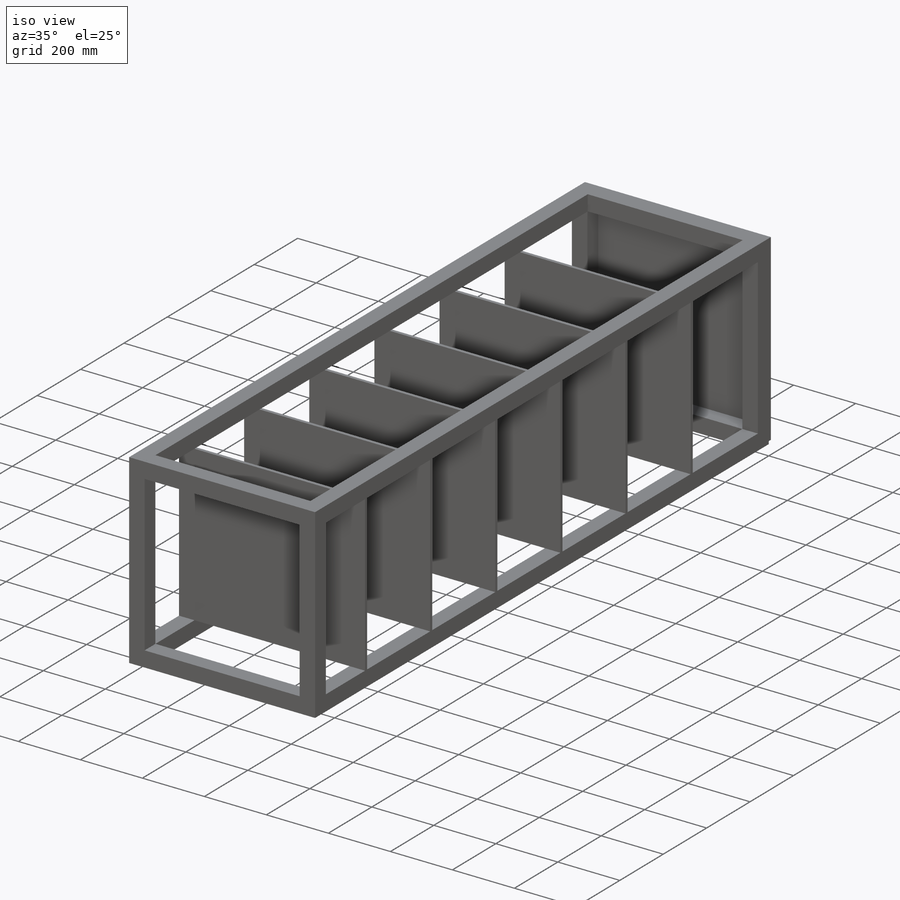
[diagram: iso view]
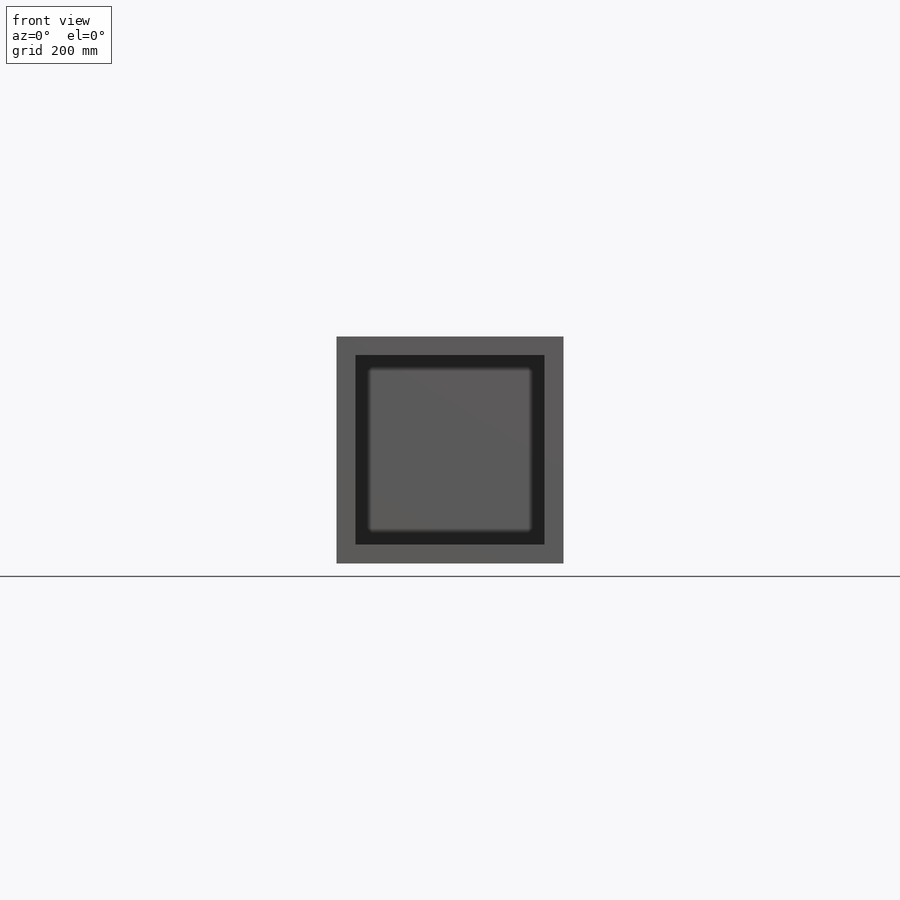
[diagram: front view]
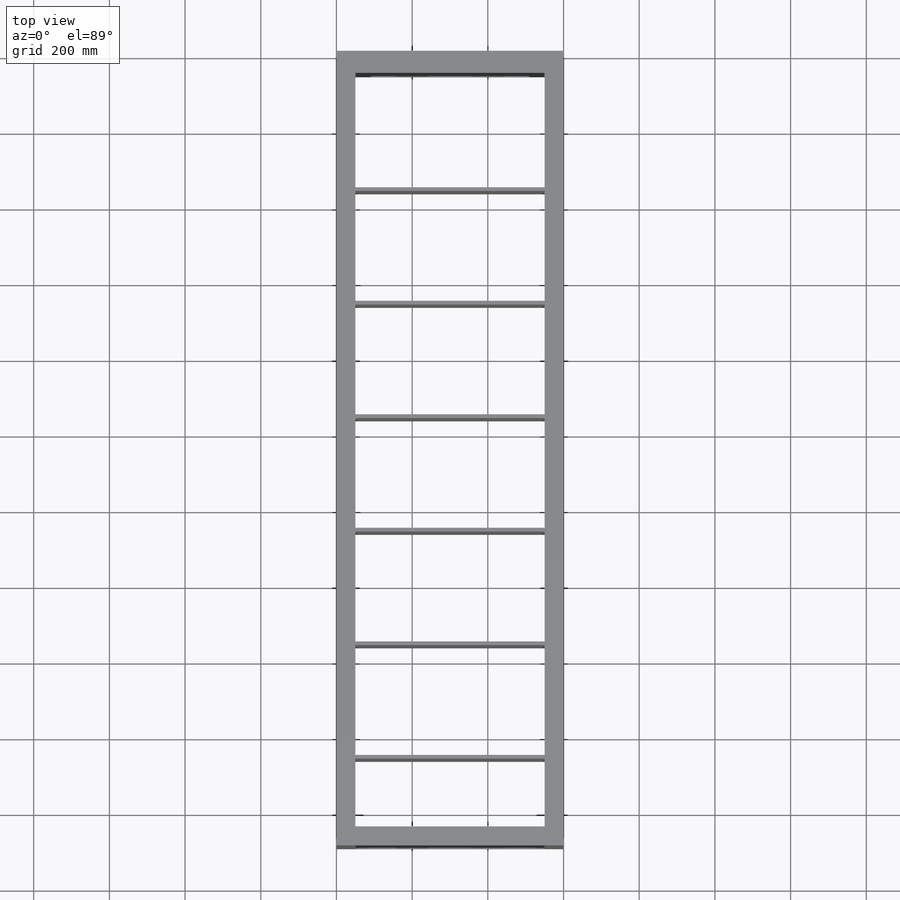
[diagram: top view]
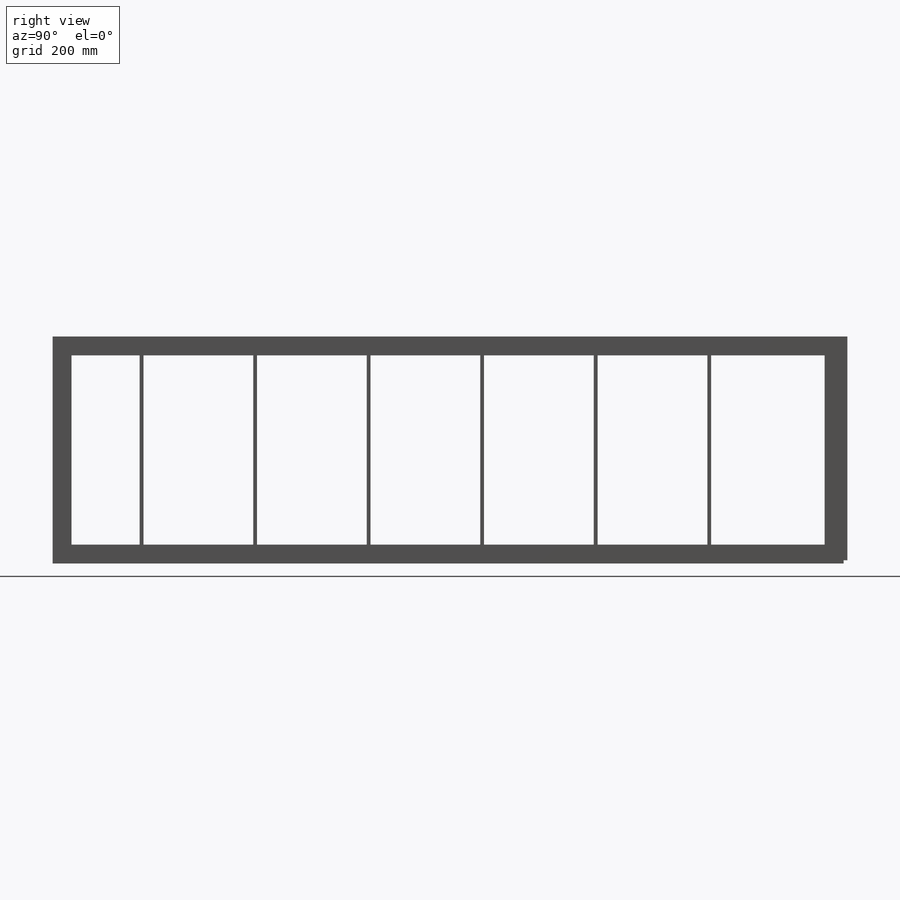
[diagram: right view]
SOLIDWORKS PART (.sldprt)
format: sldprt  version: not decoded by parser v0  size: 355,840 bytes
history: native  units: mm
features: sketch x5, extrude x5, material x1 (+12 scaffold rows collapsed)
feature tree (23):
  scaffold x12  (default folders/planes/origin — collapsed)
  material  "Material <not specified>"
  sketch  "Sketch1"  dims[c1.D1=~9.163057mm c1.D2=~12.666579mm c2.D1=50.0mm c2.D2=50.0mm c2.D3=50.0mm c2.D4=50.0mm c2.D5=50.0mm c2.D6=50.0mm c2.D7=50.0mm c2.D8=50.0mm c2.D9=500.0mm c2.D10=600.0mm]
  extrude  "Boss-Extrude1"  Depth=2090mm
  sketch  "Sketch2"  dims[c1.D1=~64.41075mm c1.D2=50.0mm c2.D1=50.0mm c2.D2=50.0mm c2.D3=~49.679898mm c2.D4=50.0mm c3.D3=50.0mm c3.D4=50.0mm c3.D5=50.0mm c4.D4=50.0mm]
  extrude  "Boss-Extrude2"  [1 undecoded]
  sketch  "Sketch3"  dims[c1.D1=50.0mm c1.D2=50.0mm c2.D1=50.0mm c2.D2=50.0mm c3.D1=50.0mm c3.D2=~48.270716mm c4.D1=50.0mm c4.D2=50.0mm]
  extrude  "Boss-Extrude3"  [1 undecoded]
  sketch  "Sketch5"  dims[c1.D1=500.0mm c1.D2=~24.905726mm c2.D1=10.0mm c2.D2=300.0mm c2.D3=6.0]
  extrude  "Boss-Extrude4"  [1 undecoded]
  sketch  "Sketch6"  dims[D1=~591.274599mm D2=600.0mm]
  extrude  "Boss-Extrude5"  Depth=10mm
decode coverage: 7 of 10 modeling features carry decoded parameters
note: ~ marks probable driven/reference dimensions
note: 3 parameter values undecoded
summary: no parameter record found for 3 features
note: suppression state not decoded; provenance and decode notes live in map.json
